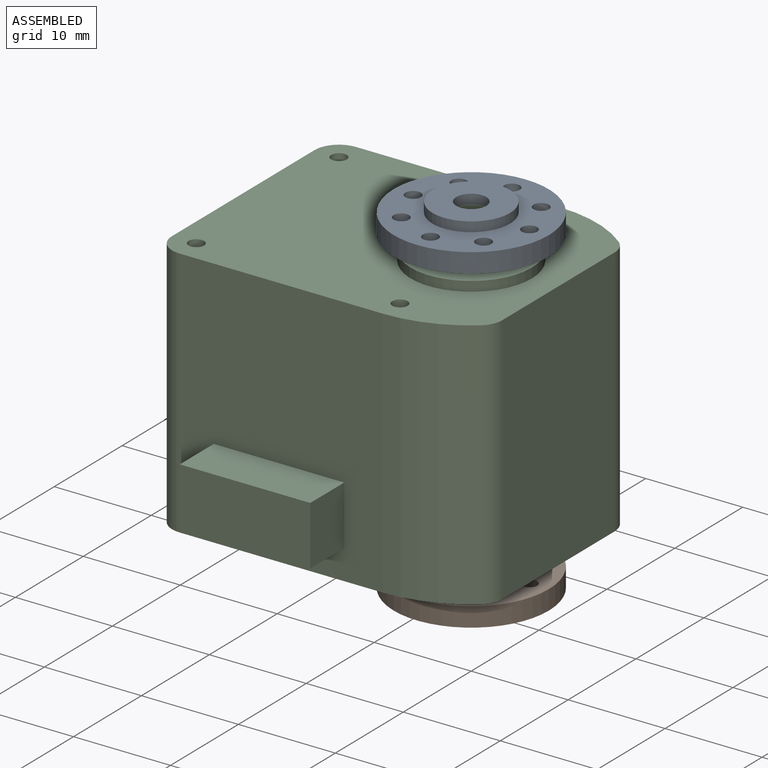
[diagram: assembled view]
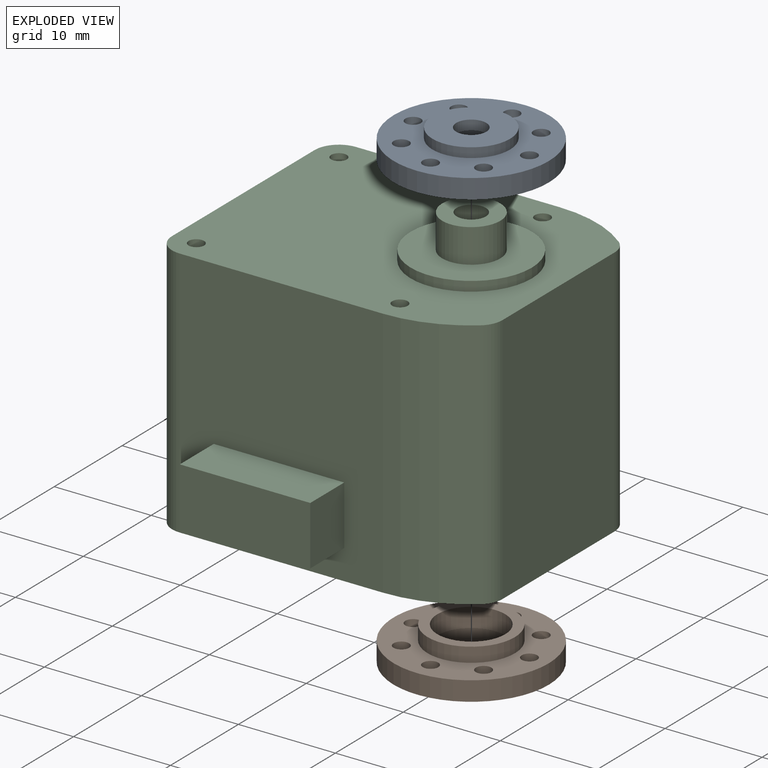
[diagram: exploded view]
GUIDED TOUR — MATED ASSEMBLY (Onshape document 80eba124832120f4e0467b7a, AutoMate assembly 80eba124832120f4e0467b7a_ea10c72efa915e0757633c80_ed9cb6b692a8a8dba4efba1c_default)

This assembly has 3 components, labeled P0..P2 below (a component is one placed occurrence of a part; the same part can appear more than once), held together by 2 mates. A mate is a constraint between two components; its type names the relative motion it leaves free:
  REVOLUTE — leaves rotation about the listed axis free (a hinge).
Axis/direction vectors are unit vectors and 'through' points are millimeter coordinates, both in the assembly's world frame.

MATES
  1. REVOLUTE "Revolute 1": P2 <-> P0, axis (0.000, 0.000, 1.000) through (0.00, 0.01, 17.29) mm
  2. REVOLUTE "Revolute 2": P1 <-> P2, axis (0.000, 0.000, -1.000) through (0.00, 0.01, -16.21) mm

ASSEMBLY ORDER
  1. P2 — the base component [order heuristic]
  2. P0 [order heuristic]
  3. P1 [order heuristic]
Order-tag legend:
  [order heuristic] — this assembly is geometrically interlocked (no collision-free removal order exists), so components are listed in mate-graph order; insertion feasibility is not verified.

Of the 3 components, 1 carries the full construction recipe — the FeatureScript program that regenerates the part's solid from scratch; the rest are supplied as boundary geometry only.
Each toured component is shown spotlighted twice — in the assembled view, then in the exploded view, where a leader line traces a displaced component back to its assembled socket (saturated green if recipe-attached, orange if geometry-only; every other component desaturated gray) — followed by its recipe or geometry summary and the mates that hold it.
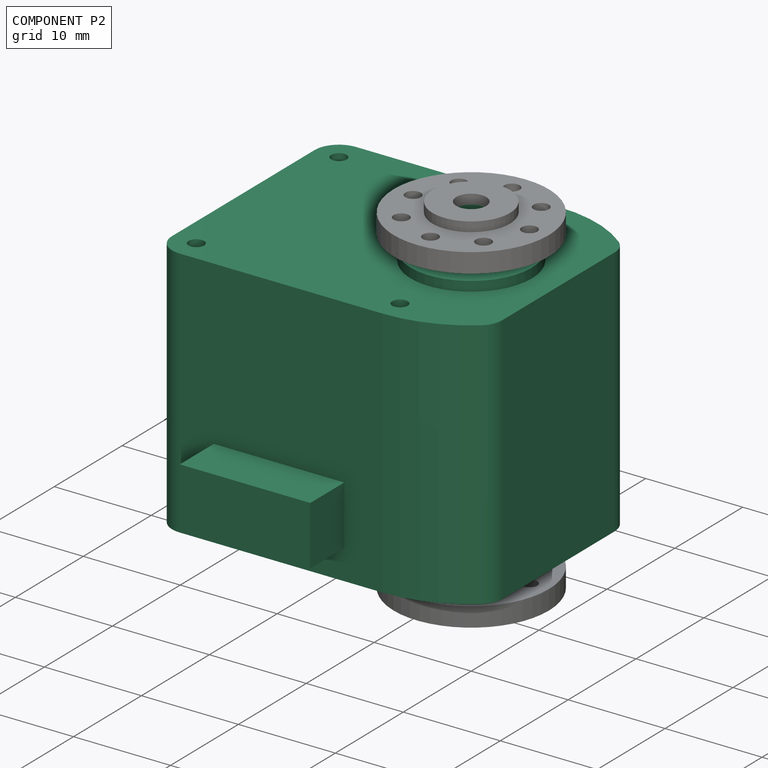
[diagram: component P2 — assembled]
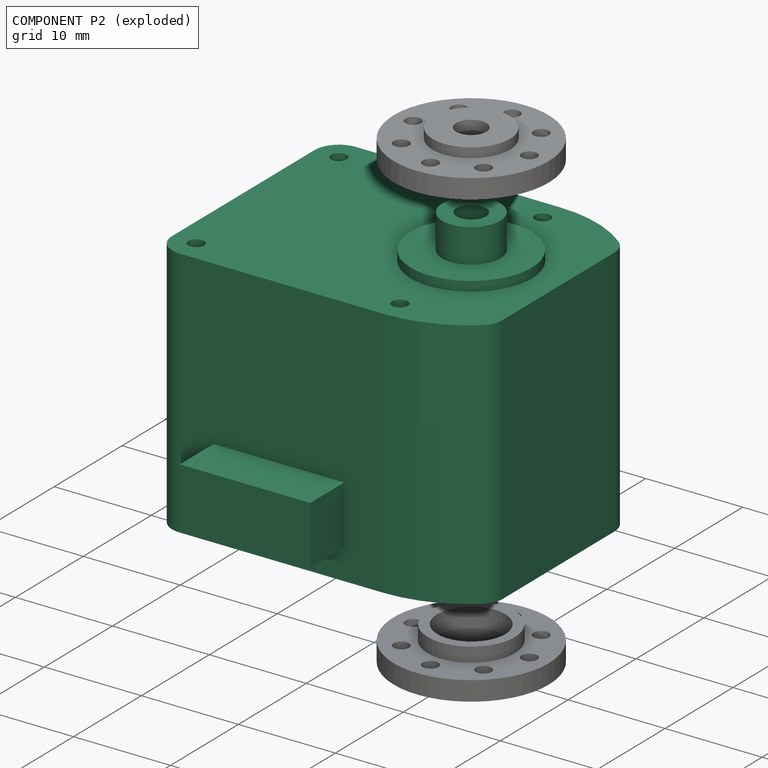
[diagram: component P2 — exploded]
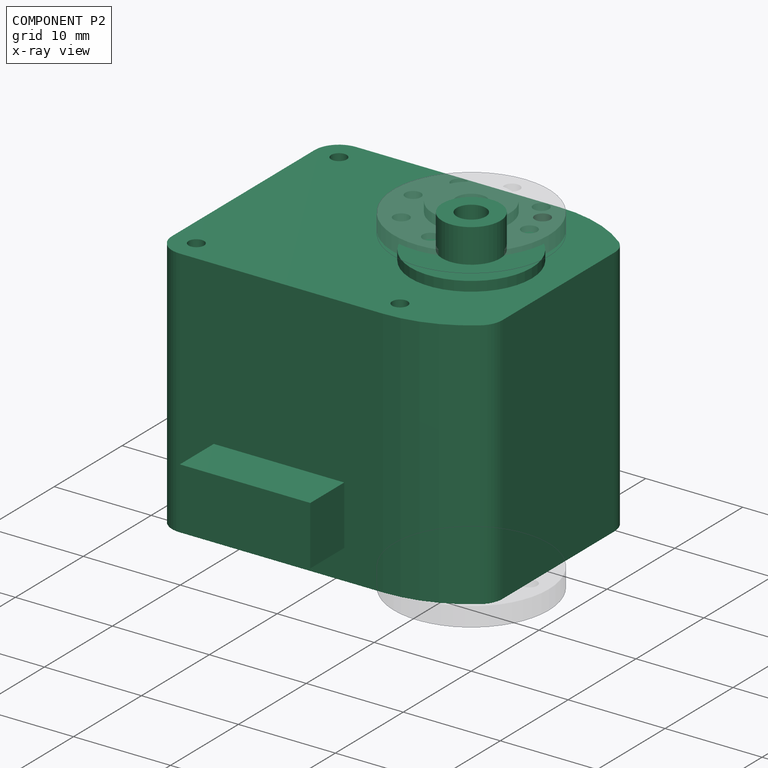
[diagram: component P2 — x-ray view]
COMPONENT P2 — recipe-attached (CADFS 00378070, mesh-verified: the recipe's output STEP matches this component's geometry to below the mesh-comparison resolution (tessellation chordal tolerance ~0.084 mm)).
Held by: REVOLUTE mate "Revolute 1" to P0; REVOLUTE mate "Revolute 2" to P1.
Construction recipe (FeatureScript — the CAD program that rebuilds this solid; sketch coordinates are in the units given by the * unit suffixes, e.g. mm):

FeatureScript 1511;
import(path : "onshape/std/geometry.fs", version : "1511.0");
import(path : "onshape/std/common.fs", version : "1511.0");
const mm = millimeter;
const VERTEX = EntityType.VERTEX;
const EDGE = EntityType.EDGE;
const FACE = EntityType.FACE;
const BODY = EntityType.BODY;
function v(x, y){return vector(x, y);}
function OD(order){return orderDisambiguation(order);}
function OSD(set){return originalSetDisambiguation(set);}
function TD(topology){return topologyDisambiguation(topology);}
function TDD(query){return trueDependencyDisambiguation(query);}
function sQuery(a, b, c) {return sketchEntityQuery(a, b, c);}

annotation { "Feature Type Name" : "Feature", "Feature Type Description" : "" }
export const myFeature = defineFeature(function(context is Context, id is Id, definition is map)
    precondition{}
    {
        {
            var Q0;
            Q0=qCreatedBy(makeId("Top.planeOp"),FACE);
            var sketch = newSketch(context, id + "F0", { "sketchPlane" : qUnion([Q0])});
            skLineSegment(sketch, "E0", {"start": v(0, 0) * mm, "end": v(-23.5, 0) * mm, "construction": true});
            skLineSegment(sketch, "E1", {"start": v(-23.5, 0) * mm, "end": v(-23.5, 10.5) * mm});
            skLineSegment(sketch, "E2", {"start": v(-21, 13) * mm, "end": v(9, 13) * mm, "construction": true});
            skLineSegment(sketch, "E3", {"start": v(9, 13) * mm, "end": v(9, 0) * mm, "construction": true});
            skLineSegment(sketch, "E4", {"start": v(9, 0) * mm, "end": v(0, 0) * mm, "construction": true});
            skLineSegment(sketch, "E5", {"start": v(-21, 0) * mm, "end": v(-21, 10.5) * mm, "construction": true});
            skLineSegment(sketch, "E6", {"start": v(-21, 10.5) * mm, "end": v(0, 10.5) * mm, "construction": true});
            skLineSegment(sketch, "E7", {"start": v(0, 10.5) * mm, "end": v(0, 0) * mm, "construction": true});
            skPoint(sketch, "E8.visualSharp", {"position": v(-23.5, 13) * mm});
            skArc(sketch, "E8.filletArc", {"start": v(-21, 13) * mm, "mid": v(-22.77, 12.27) * mm, "end": v(-23.5, 10.5) * mm});
            skCircle(sketch, "E9", {"center": v(-21, 10.5) * mm, "radius": 0.8 * mm});
            skCircle(sketch, "E10", {"center": v(0, 10.5) * mm, "radius": 0.8 * mm});
            skArc(sketch, "E11", {"start": v(0, 13) * mm, "mid": v(4.26, 12.28) * mm, "end": v(8.05, 10.2) * mm});
            skLineSegment(sketch, "E12", {"start": v(-21, 13) * mm, "end": v(0, 13) * mm});
            skLineSegment(sketch, "E13", {"start": v(9, 8.25) * mm, "end": v(9, 0) * mm});
            skPoint(sketch, "E14.visualSharp", {"position": v(9, 9.38) * mm});
            skArc(sketch, "E14.filletArc", {"start": v(9, 8.25) * mm, "mid": v(8.75, 9.34) * mm, "end": v(8.05, 10.2) * mm});
            skLineSegment(sketch, "E15.MirrorCS", {"start": v(-23.5, 0) * mm, "end": v(-23.5, -10.5) * mm});
            skArc(sketch, "E16.MirrorCS", {"start": v(-21, -13) * mm, "mid": v(-22.77, -12.27) * mm, "end": v(-23.5, -10.5) * mm});
            skLineSegment(sketch, "E17.MirrorCS", {"start": v(-21, -13) * mm, "end": v(0, -13) * mm});
            skArc(sketch, "E18.MirrorCS", {"start": v(0, -13) * mm, "mid": v(4.26, -12.28) * mm, "end": v(8.05, -10.2) * mm});
            skArc(sketch, "E19.MirrorCS", {"start": v(9, -8.25) * mm, "mid": v(8.75, -9.34) * mm, "end": v(8.05, -10.2) * mm});
            skLineSegment(sketch, "E20.MirrorCS", {"start": v(9, -8.25) * mm, "end": v(9, 0) * mm});
            skCircle(sketch, "E21.MirrorC", {"center": v(0, -10.5) * mm, "radius": 0.8 * mm});
            skCircle(sketch, "E22.MirrorC", {"center": v(-21, -10.5) * mm, "radius": 0.8 * mm});
            skSolve(sketch);
        }
        {
            var Q0;
            Q0=makeQuery(id+"F0.imprint","IMPRINT",FACE,{"disambiguationData":[TD([[makeQuery(id+"F0.imprint","IMPRINT",EDGE,{"derivedFrom":sQuery(id+"F0.wireOp",EDGE,"E1")}),-1.0]])]});
            extrude(context, id + "F1", {"entities" : qUnion([Q0]), "endBound" : BoundingType.SYMMETRIC, "depth" : 26 * mm});
        }
        {
            var Q0;
            Q0=makeQuery(id+"F1.opExtrude","CAP_FACE",FACE,{"disambiguationData":[OSD([sQuery(id+"F0.wireOp",EDGE,"E1"),sQuery(id+"F0.wireOp",EDGE,"E8.filletArc"),sQuery(id+"F0.wireOp",EDGE,"E9"),sQuery(id+"F0.wireOp",EDGE,"E10"),sQuery(id+"F0.wireOp",EDGE,"E11"),sQuery(id+"F0.wireOp",EDGE,"E12"),sQuery(id+"F0.wireOp",EDGE,"E13"),sQuery(id+"F0.wireOp",EDGE,"E14.filletArc"),sQuery(id+"F0.wireOp",EDGE,"E15.MirrorCS"),sQuery(id+"F0.wireOp",EDGE,"E16.MirrorCS"),sQuery(id+"F0.wireOp",EDGE,"E17.MirrorCS"),sQuery(id+"F0.wireOp",EDGE,"E18.MirrorCS"),sQuery(id+"F0.wireOp",EDGE,"E19.MirrorCS"),sQuery(id+"F0.wireOp",EDGE,"E20.MirrorCS"),sQuery(id+"F0.wireOp",EDGE,"E21.MirrorC"),sQuery(id+"F0.wireOp",EDGE,"E22.MirrorC")])],"isStart":false});
            var sketch = newSketch(context, id + "F2", { "sketchPlane" : qUnion([Q0])});
            skCircle(sketch, "E23", {"center": v(0, 0) * mm, "radius": 6.25 * mm});
            skSolve(sketch);
        }
        {
            var Q0;
            Q0=makeQuery(id+"F2.imprint","IMPRINT",FACE,{"disambiguationData":[TD([[makeQuery(id+"F2.imprint","IMPRINT",EDGE,{"derivedFrom":sQuery(id+"F2.wireOp",EDGE,"E23")}),1.0]])]});
            extrude(context, id + "F3", {"entities" : qUnion([Q0]), "operationType" : NewBodyOperationType.ADD, "depth" : 1 * mm, "hasSecondDirection" : true, "secondDirectionOppositeDirection" : true, "secondDirectionDepth" : (26 + 1) * mm});
        }
        {
            var Q0;
            Q0=makeQuery(id+"F3.opExtrude","CAP_FACE",FACE,{"disambiguationData":[OSD([sQuery(id+"F2.wireOp",EDGE,"E23")])],"isStart":false});
            var sketch = newSketch(context, id + "F4", { "sketchPlane" : qUnion([Q0])});
            skCircle(sketch, "E24", {"center": v(0, 0) * mm, "radius": 3 * mm});
            skCircle(sketch, "E25", {"center": v(0, 0) * mm, "radius": 1.5 * mm});
            skSolve(sketch);
        }
        {
            var Q0;
            Q0=makeQuery(id+"F4.imprint","IMPRINT",FACE,{"disambiguationData":[TD([[makeQuery(id+"F4.imprint","IMPRINT",EDGE,{"derivedFrom":sQuery(id+"F4.wireOp",EDGE,"E24")}),1.0]])]});
            extrude(context, id + "F5", {"entities" : qUnion([Q0]), "operationType" : NewBodyOperationType.ADD, "depth" : 3.5 * mm});
        }
        {
            var Q0;
            Q0=makeQuery(id+"F3.opExtrude","CAP_FACE",FACE,{"disambiguationData":[OSD([sQuery(id+"F2.wireOp",EDGE,"E23")])],"isStart":true});
            var sketch = newSketch(context, id + "F6", { "sketchPlane" : qUnion([Q0])});
            skCircle(sketch, "E26", {"center": v(0, 0) * mm, "radius": 3.5 * mm});
            skCircle(sketch, "E27", {"center": v(0, 0) * mm, "radius": 1.1 * mm});
            skSolve(sketch);
        }
        {
            var Q0;
            Q0=qSketchRegion(id+"F6",true);
            extrude(context, id + "F7", {"entities" : qUnion([Q0]), "operationType" : NewBodyOperationType.ADD, "depth" : (3 - 1) * mm});
        }
        {
            var Q0;
            Q0=makeQuery(id+"F1.opExtrude","SWEPT_FACE",FACE,{"disambiguationData":[OSD([sQuery(id+"F0.wireOp",EDGE,"E17.MirrorCS")])]});
            var sketch = newSketch(context, id + "F8", { "sketchPlane" : qUnion([Q0])});
            skLineSegment(sketch, "E28", {"start": v(-7.25, -13) * mm, "end": v(-7.25, 13) * mm, "construction": true});
            skLineSegment(sketch, "E29.bottom", {"start": v(-4, -3.8) * mm, "end": v(-17.45, -3.8) * mm});
            skLineSegment(sketch, "E29.top", {"start": v(-4, -9.9) * mm, "end": v(-17.45, -9.9) * mm});
            skLineSegment(sketch, "E29.left", {"start": v(-4, -3.8) * mm, "end": v(-4, -9.9) * mm});
            skLineSegment(sketch, "E29.right", {"start": v(-17.45, -3.8) * mm, "end": v(-17.45, -9.9) * mm});
            skPoint(sketch, "E29.middle", {"position": v(-10.72, -6.85) * mm});
            skSolve(sketch);
        }
        {
            var Q0;
            Q0=qSketchRegion(id+"F8",true);
            extrude(context, id + "F9", {"entities" : qUnion([Q0]), "operationType" : NewBodyOperationType.ADD, "depth" : 5 * mm});
        }
    });
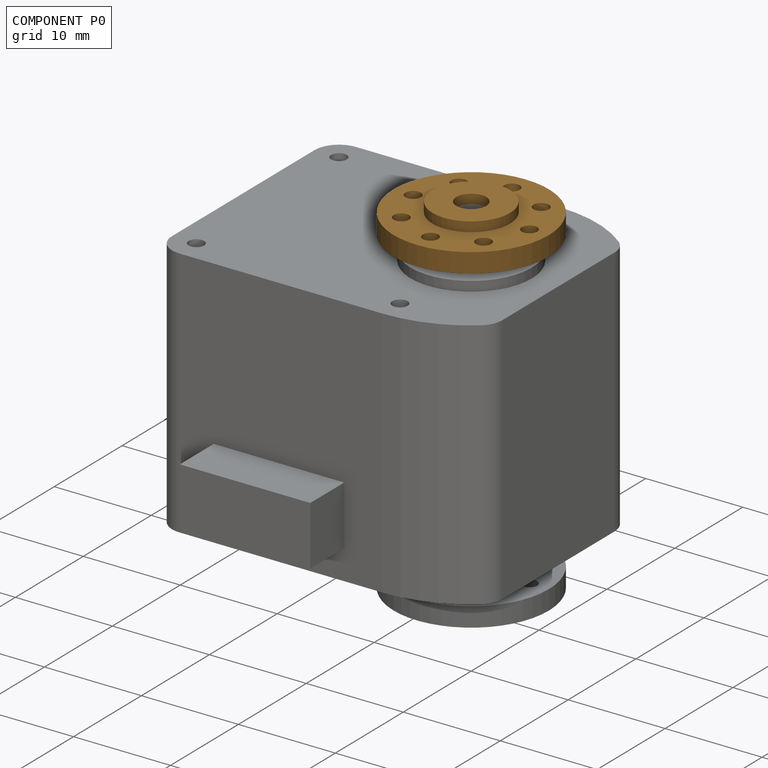
[diagram: component P0 — assembled]
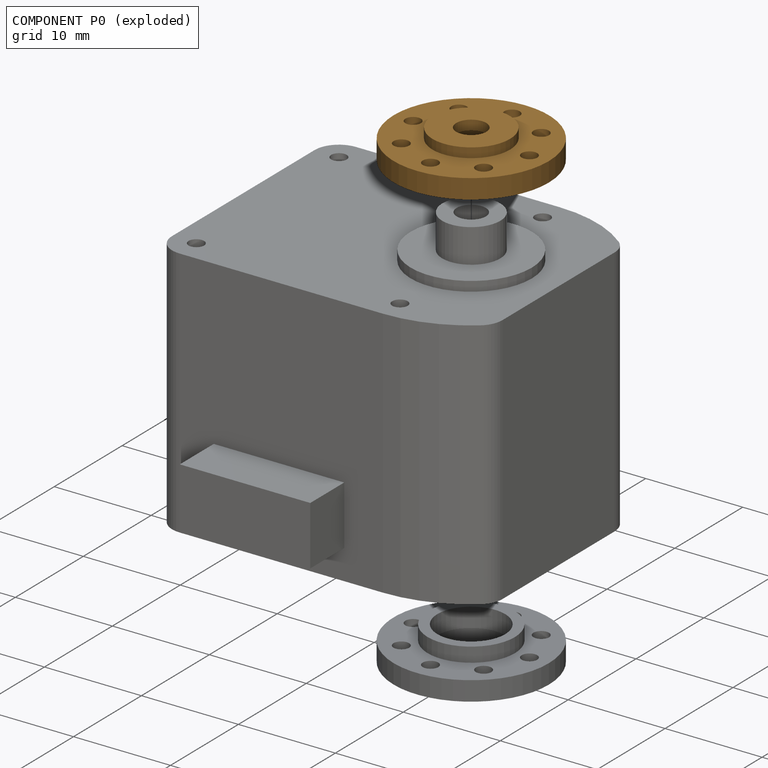
[diagram: component P0 — exploded]
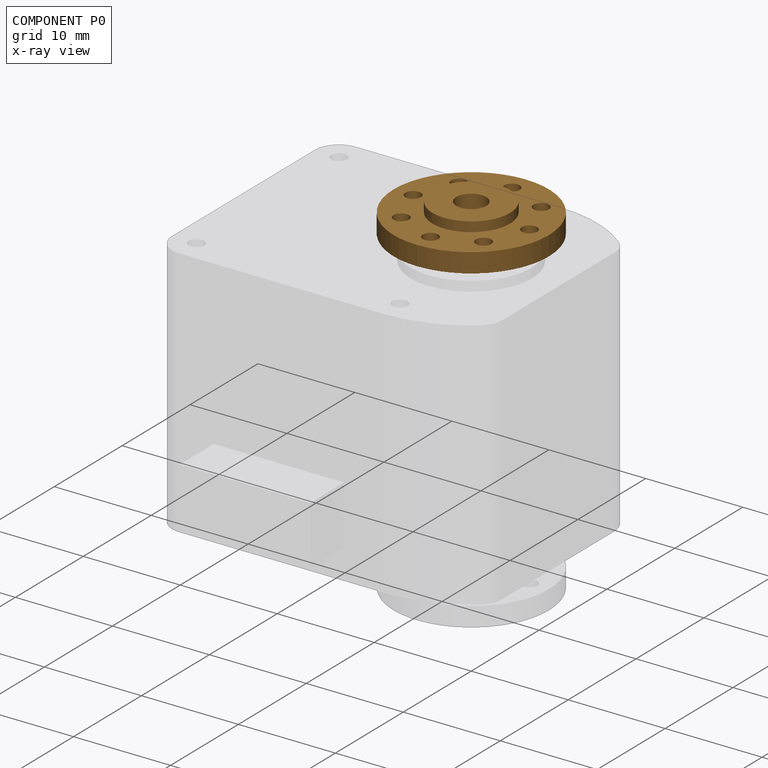
[diagram: component P0 — x-ray view]
COMPONENT P0 — geometry summary (no construction recipe available for this part):
  bounding box: 16.0 x 16.0 x 4.2 mm
  B-rep topology: 1 solid, 18 faces, 78 edges
  volume: 399 mm^3 (37% of its bounding box)
  symmetry: 4-fold rotationally symmetric about the z axis; mirror-symmetric across its x mid-plane, y mid-plane
Held by: REVOLUTE mate "Revolute 1" to P2.
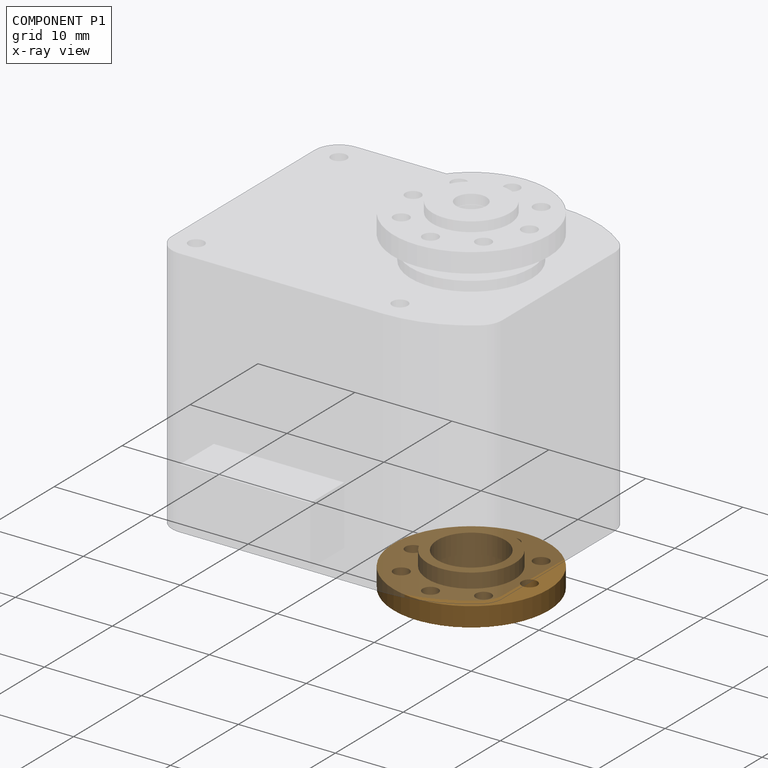
[diagram: component P1 — x-ray view]
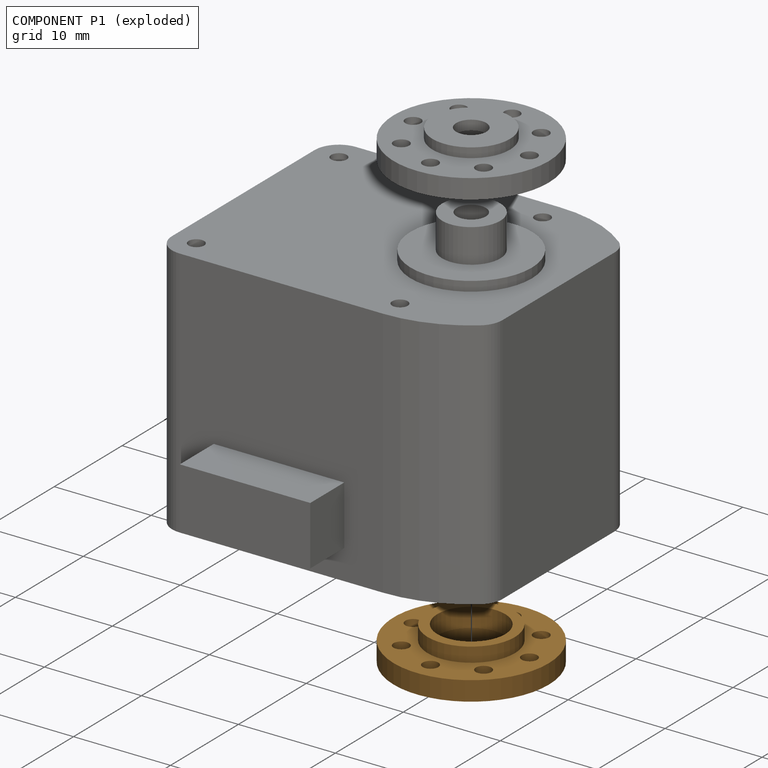
[diagram: component P1 — exploded]
COMPONENT P1 — geometry summary (no construction recipe available for this part):
  bounding box: 16.0 x 16.0 x 3.5 mm
  B-rep topology: 1 solid, 16 faces, 72 edges
  volume: 313 mm^3 (35% of its bounding box)
  symmetry: 4-fold rotationally symmetric about the z axis; mirror-symmetric across its x mid-plane, y mid-plane
Held by: REVOLUTE mate "Revolute 2" to P2.
PROVENANCE & LICENSES
Assembly (occurrences, transforms, mates, per-part STEP geometry): AutoMate dataset, Zenodo record 7776208, CC0.
Construction recipes: CADFS (HuggingFace VladPyatov/CADFS, CC-BY-4.0, layered over the ABC dataset), FeatureScript reconstruction programs keyed by ABC model id.
Join: ABC meta listings map ABC model id -> Onshape documentId; within a shared document, parts are matched by geometric signature (bounding-box dims + volume at 0.1% relative tolerance, exact B-rep face/solid counts).
Verification: 1 of this assembly's 3 components carries a recipe attachment, and every attachment is mesh-verified: the CADFS STEP and the AutoMate member STEP were compared as meshes in their shared local frame (symmetric sampled-point-to-mesh distance); worst across the 1 attachment: below the mesh-comparison resolution (tessellation chordal tolerance ~0.084 mm) on a 56 mm part.
Renders: orthographic iso camera (az 35 / el 25); the floor grid conveys scale (grid pitch printed in each image; no ruler). In the exploded view each component is displaced by its stored offset vector: the offsets alone carry the explosion direction (mate normal/axis signs are not orientation cues and do not encode it), and separation distances are assigned per mate-chain, not proportionally to assembly-order depth.
